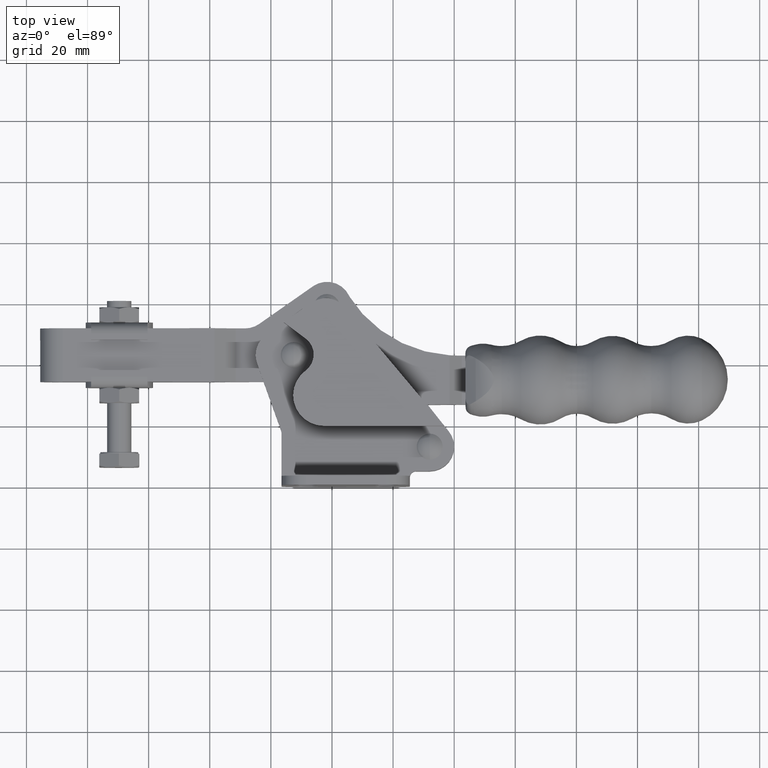
[diagram: clean part render]
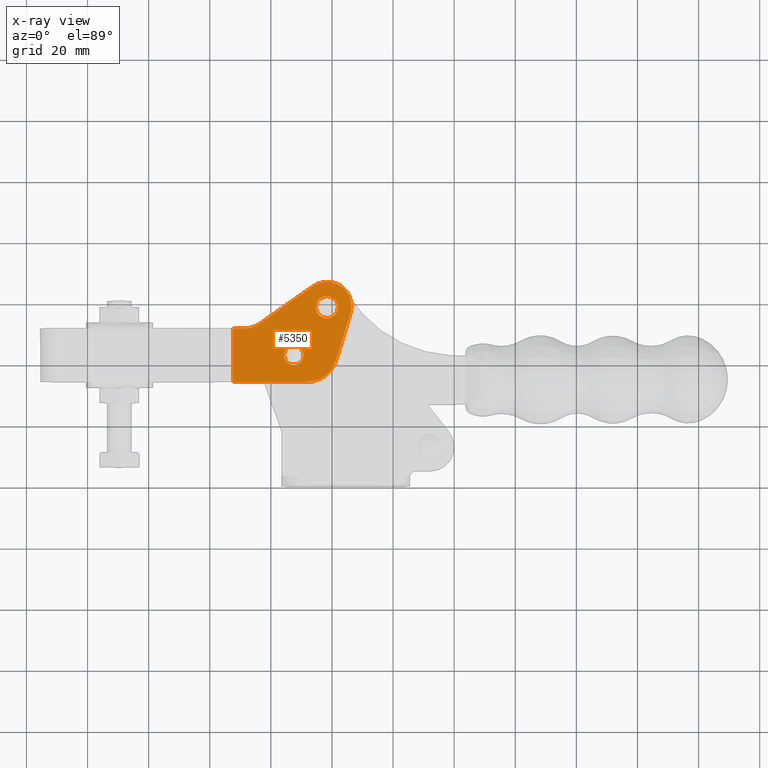
[diagram: x-ray — body ghosted, one internal face saturated and labeled with its STEP entity id]
A machine part, top view, then the same camera in x-ray: the body is ghosted and one INTERNAL B-rep face — a face not visible from any outside direction — is saturated and labeled: STEP entity #5350.
In plain terms, the highlighted planar face has unit normal (-0, -0, -1).
Its self-contained STEP definition (entity closure, byte-faithful):
#64 = CARTESIAN_POINT ( 'NONE',  ( -52.50000000000073200, 42.99999999999980100, -3.000550000000249600 ) ) ;
#391 = EDGE_CURVE ( 'NONE', #2572, #6741, #5151, .T. ) ;
#428 = CARTESIAN_POINT ( 'NONE',  ( -52.50000000000073200, 42.99999999999980100, -3.000550000000249600 ) ) ;
#441 = EDGE_CURVE ( 'NONE', #6741, #2769, #8734, .T. ) ;
#576 = LINE ( 'NONE', #4454, #5384 ) ;
#808 = VERTEX_POINT ( 'NONE', #8986 ) ;
#1006 = FACE_OUTER_BOUND ( 'NONE', #5270, .T. ) ;
#1041 = DIRECTION ( 'NONE',  ( -0.0003083590043826988100, 0.9999999524573610600, -1.365923996832139000E-016 ) ) ;
#1106 = ORIENTED_EDGE ( 'NONE', *, *, #3725, .T. ) ;
#1407 = DIRECTION ( 'NONE',  ( -0.0003083590043826988100, 0.9999999524573610600, -1.365923996832139000E-016 ) ) ;
#1693 = AXIS2_PLACEMENT_3D ( 'NONE', #9320, #3597, #10262 ) ;
#1694 = CARTESIAN_POINT ( 'NONE',  ( -46.19556627820976800, 65.55516145554933900, -3.000550000000254100 ) ) ;
#1807 = CARTESIAN_POINT ( 'NONE',  ( -72.37762406495501500, 34.24387013934415300, -3.000550000000241600 ) ) ;
#1847 = VERTEX_POINT ( 'NONE', #2771 ) ;
#1947 = CARTESIAN_POINT ( 'NONE',  ( -38.06542724555944800, 58.70645486122008800, -3.000550000000255800 ) ) ;
#1982 = AXIS2_PLACEMENT_3D ( 'NONE', #64, #6792, #1041 ) ;
#2008 = CARTESIAN_POINT ( 'NONE',  ( -49.32500000000074900, 42.99999999999980100, -3.000550000000250500 ) ) ;
#2218 = EDGE_CURVE ( 'NONE', #11145, #1847, #5475, .T. ) ;
#2489 = ORIENTED_EDGE ( 'NONE', *, *, #8535, .T. ) ;
#2572 = VERTEX_POINT ( 'NONE', #9210 ) ;
#2769 = VERTEX_POINT ( 'NONE', #11539 ) ;
#2770 = DIRECTION ( 'NONE',  ( 0.0003083590043819558600, -0.9999999524573610600, 9.888322585913691400E-017 ) ) ;
#2771 = CARTESIAN_POINT ( 'NONE',  ( -45.26542724555944400, 58.70645486122008800, -3.000550000000253200 ) ) ;
#2941 = AXIS2_PLACEMENT_3D ( 'NONE', #8960, #3224, #9889 ) ;
#2951 = FACE_BOUND ( 'NONE', #7821, .T. ) ;
#3023 = DIRECTION ( 'NONE',  ( 3.389585620440453000E-016, 9.898775148999448100E-017, 1.000000000000000000 ) ) ;
#3224 = DIRECTION ( 'NONE',  ( 3.389585620440453000E-016, 9.898775148999448100E-017, 1.000000000000000000 ) ) ;
#3597 = DIRECTION ( 'NONE',  ( -3.389585620440453000E-016, -9.898775148999448100E-017, -1.000000000000000000 ) ) ;
#3600 = CARTESIAN_POINT ( 'NONE',  ( -85.32284503124273600, 66.98987992072721900, -3.000550000000240700 ) ) ;
#3725 = EDGE_CURVE ( 'NONE', #2769, #7024, #9723, .T. ) ;
#3803 = VERTEX_POINT ( 'NONE', #10382 ) ;
#4025 = CIRCLE ( 'NONE', #7138, 3.599999999999999200 ) ;
#4156 = EDGE_CURVE ( 'NONE', #9369, #808, #576, .T. ) ;
#4245 = ORIENTED_EDGE ( 'NONE', *, *, #9236, .T. ) ;
#4357 = DIRECTION ( 'NONE',  ( -3.389585620440453000E-016, -9.898775148999448100E-017, -1.000000000000000000 ) ) ;
#4454 = CARTESIAN_POINT ( 'NONE',  ( -85.31274627384924300, 34.23988147774863200, -3.000550000000237600 ) ) ;
#4569 = DIRECTION ( 'NONE',  ( -3.389585620440453000E-016, -9.898775148999449300E-017, -1.000000000000000000 ) ) ;
#4653 = VECTOR ( 'NONE', #7442, 1000.000000000000100 ) ;
#4794 = VECTOR ( 'NONE', #2770, 1000.000000000000200 ) ;
#5125 = DIRECTION ( 'NONE',  ( -0.9999999524573610600, -0.0003083590043819559200, 3.389890696935561700E-016 ) ) ;
#5151 = LINE ( 'NONE', #10526, #7681 ) ;
#5179 = DIRECTION ( 'NONE',  ( -3.389585620440453000E-016, -9.898775148999448100E-017, -1.000000000000000000 ) ) ;
#5270 = EDGE_LOOP ( 'NONE', ( #9105, #12018, #6402, #1106, #4245, #2489, #5458, #9987 ) ) ;
#5350 = ADVANCED_FACE ( 'NONE', ( #2951, #5518, #1006 ), #12158, .F. ) ;
#5384 = VECTOR ( 'NONE', #10158, 1000.000000000000100 ) ;
#5458 = ORIENTED_EDGE ( 'NONE', *, *, #6406, .T. ) ;
#5475 = CIRCLE ( 'NONE', #7392, 3.599999999999999200 ) ;
#5518 = FACE_BOUND ( 'NONE', #11987, .T. ) ;
#5732 = CARTESIAN_POINT ( 'NONE',  ( -72.37762406495501500, 34.24387013934415300, -3.000550000000243000 ) ) ;
#5847 = AXIS2_PLACEMENT_3D ( 'NONE', #428, #7159, #1407 ) ;
#6148 = CIRCLE ( 'NONE', #1982, 3.174999999999982900 ) ;
#6315 = CIRCLE ( 'NONE', #7837, 10.00000000000001800 ) ;
#6402 = ORIENTED_EDGE ( 'NONE', *, *, #441, .T. ) ;
#6406 = EDGE_CURVE ( 'NONE', #11537, #9369, #7347, .T. ) ;
#6531 = EDGE_CURVE ( 'NONE', #808, #2572, #6315, .T. ) ;
#6581 = CARTESIAN_POINT ( 'NONE',  ( -72.38302034753168400, 51.74386930734804200, -3.000550000000243400 ) ) ;
#6741 = VERTEX_POINT ( 'NONE', #11044 ) ;
#6792 = DIRECTION ( 'NONE',  ( 3.389585620440453000E-016, 9.898775148999448100E-017, 1.000000000000000000 ) ) ;
#7024 = VERTEX_POINT ( 'NONE', #10482 ) ;
#7035 = EDGE_CURVE ( 'NONE', #10624, #11022, #6148, .T. ) ;
#7138 = AXIS2_PLACEMENT_3D ( 'NONE', #10886, #5179, #11843 ) ;
#7159 = DIRECTION ( 'NONE',  ( 3.389585620440453000E-016, 9.898775148999448100E-017, 1.000000000000000000 ) ) ;
#7263 = CIRCLE ( 'NONE', #1693, 7.999999999999991100 ) ;
#7347 = LINE ( 'NONE', #1807, #4794 ) ;
#7392 = AXIS2_PLACEMENT_3D ( 'NONE', #10069, #4357, #11046 ) ;
#7442 = DIRECTION ( 'NONE',  ( -0.8189751378854928100, -0.5738290019905215600, 3.344006777342796600E-016 ) ) ;
#7558 = ORIENTED_EDGE ( 'NONE', *, *, #2218, .T. ) ;
#7681 = VECTOR ( 'NONE', #9536, 1000.000000000000100 ) ;
#7821 = EDGE_LOOP ( 'NONE', ( #10786, #9384 ) ) ;
#7837 = AXIS2_PLACEMENT_3D ( 'NONE', #8766, #3023, #9704 ) ;
#8017 = VECTOR ( 'NONE', #5125, 1000.000000000000100 ) ;
#8535 = EDGE_CURVE ( 'NONE', #3803, #11537, #10544, .T. ) ;
#8678 = ORIENTED_EDGE ( 'NONE', *, *, #11859, .T. ) ;
#8734 = CIRCLE ( 'NONE', #2941, 7.999999999999907600 ) ;
#8766 = CARTESIAN_POINT ( 'NONE',  ( -48.20129671763579900, 44.25132560335548200, -3.000550000000251000 ) ) ;
#8960 = CARTESIAN_POINT ( 'NONE',  ( -41.60493426228564600, 59.00336035246547100, -3.000550000000255000 ) ) ;
#8986 = CARTESIAN_POINT ( 'NONE',  ( -48.19821312759197700, 34.25132607878182300, -3.000550000000250100 ) ) ;
#9105 = ORIENTED_EDGE ( 'NONE', *, *, #6531, .T. ) ;
#9210 = CARTESIAN_POINT ( 'NONE',  ( -38.63734805818015900, 41.33055754695376300, -3.000550000000254100 ) ) ;
#9236 = EDGE_CURVE ( 'NONE', #7024, #3803, #7263, .T. ) ;
#9320 = CARTESIAN_POINT ( 'NONE',  ( -68.42920198113427000, 59.74508888324211100, -3.000550000000245600 ) ) ;
#9369 = VERTEX_POINT ( 'NONE', #5732 ) ;
#9373 = CARTESIAN_POINT ( 'NONE',  ( -55.67500000000071500, 42.99999999999980100, -3.000550000000248700 ) ) ;
#9384 = ORIENTED_EDGE ( 'NONE', *, *, #11907, .F. ) ;
#9424 = CIRCLE ( 'NONE', #5847, 3.174999999999982900 ) ;
#9536 = DIRECTION ( 'NONE',  ( 0.2920768056401715200, 0.9563948659455640000, -1.936733113627367000E-016 ) ) ;
#9704 = DIRECTION ( 'NONE',  ( -0.0003083590043820300200, 0.9999999524573611700, -8.673617379884020700E-017 ) ) ;
#9723 = LINE ( 'NONE', #1694, #4653 ) ;
#9889 = DIRECTION ( 'NONE',  ( -0.0003083590043818606700, 0.9999999524573611700, -1.084202172485517000E-016 ) ) ;
#9987 = ORIENTED_EDGE ( 'NONE', *, *, #4156, .T. ) ;
#10069 = CARTESIAN_POINT ( 'NONE',  ( -41.66542724555944200, 58.70645486122008800, -3.000550000000254500 ) ) ;
#10158 = DIRECTION ( 'NONE',  ( 0.9999999524573610600, 0.0003083590043819559200, -3.389890696935561700E-016 ) ) ;
#10262 = DIRECTION ( 'NONE',  ( -0.0003083590043827247800, 0.9999999524573611700, -1.084202172485505700E-016 ) ) ;
#10382 = CARTESIAN_POINT ( 'NONE',  ( -68.42673510909921200, 51.74508926358323200, -3.000550000000244700 ) ) ;
#10482 = CARTESIAN_POINT ( 'NONE',  ( -63.83856996521007700, 53.19328778015820100, -3.000550000000246500 ) ) ;
#10526 = CARTESIAN_POINT ( 'NONE',  ( -38.63734805818015200, 41.33055754695376300, -3.000550000000254100 ) ) ;
#10544 = LINE ( 'NONE', #10829, #8017 ) ;
#10624 = VERTEX_POINT ( 'NONE', #2008 ) ;
#10786 = ORIENTED_EDGE ( 'NONE', *, *, #7035, .F. ) ;
#10829 = CARTESIAN_POINT ( 'NONE',  ( -68.42673510909921200, 51.74508926358321800, -3.000550000000244700 ) ) ;
#10886 = CARTESIAN_POINT ( 'NONE',  ( -41.66542724555944200, 58.70645486122008800, -3.000550000000254500 ) ) ;
#11022 = VERTEX_POINT ( 'NONE', #9373 ) ;
#11044 = CARTESIAN_POINT ( 'NONE',  ( -33.95377533472123600, 56.66674590734409400, -3.000550000000257200 ) ) ;
#11046 = DIRECTION ( 'NONE',  ( -1.000000000000000000, 0.0000000000000000000, 3.614007241618348800E-016 ) ) ;
#11145 = VERTEX_POINT ( 'NONE', #1947 ) ;
#11247 = DIRECTION ( 'NONE',  ( -0.0003083590043819559200, 0.9999999524573610600, -9.888322585913691400E-017 ) ) ;
#11537 = VERTEX_POINT ( 'NONE', #6581 ) ;
#11539 = CARTESIAN_POINT ( 'NONE',  ( -46.19556627820976800, 65.55516145554933900, -3.000550000000254100 ) ) ;
#11843 = DIRECTION ( 'NONE',  ( -1.000000000000000000, 0.0000000000000000000, 3.614007241618348800E-016 ) ) ;
#11859 = EDGE_CURVE ( 'NONE', #1847, #11145, #4025, .T. ) ;
#11907 = EDGE_CURVE ( 'NONE', #11022, #10624, #9424, .T. ) ;
#11987 = EDGE_LOOP ( 'NONE', ( #7558, #8678 ) ) ;
#12018 = ORIENTED_EDGE ( 'NONE', *, *, #391, .T. ) ;
#12158 = PLANE ( 'NONE',  #12288 ) ;
#12288 = AXIS2_PLACEMENT_3D ( 'NONE', #3600, #4569, #11247 ) ;